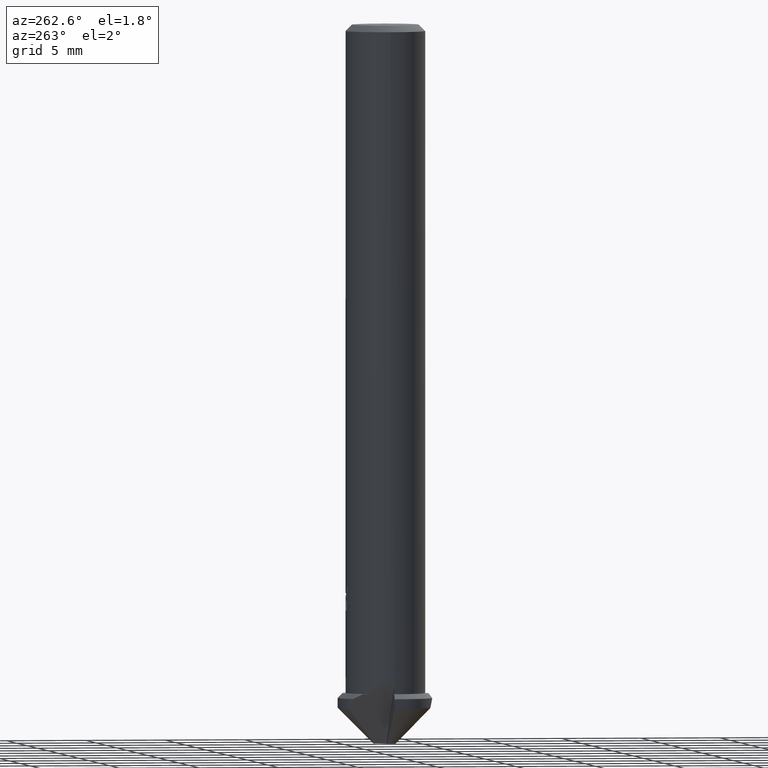
[diagram: clean part render]
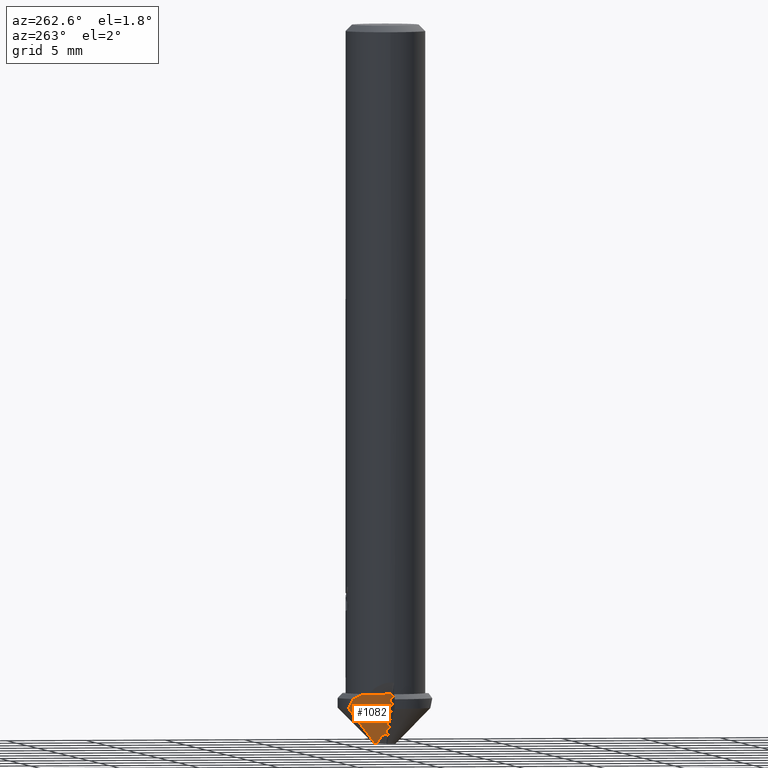
[diagram: same view with one face highlighted and labeled with its STEP entity id]
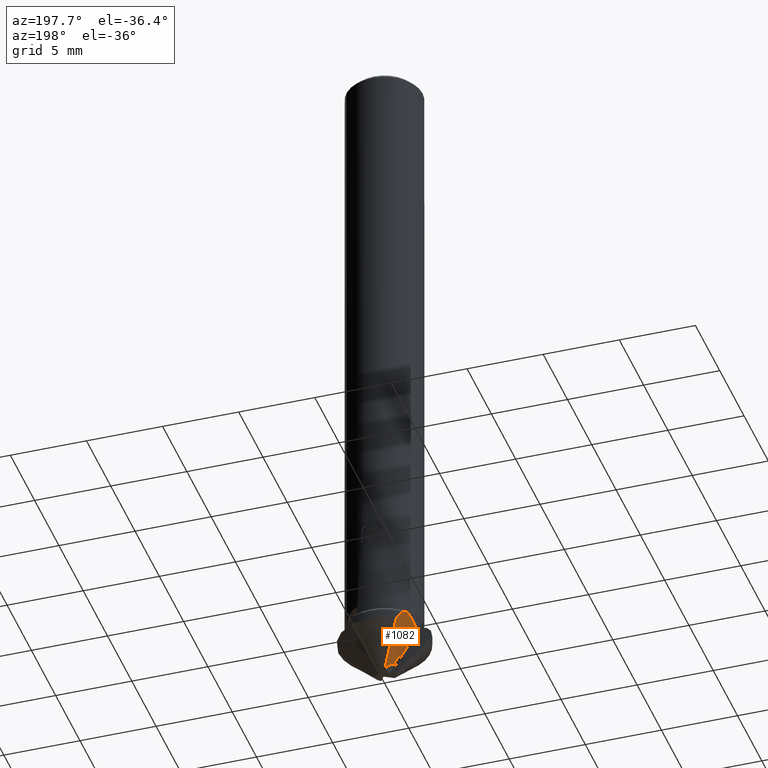
[diagram: same view with one face highlighted and labeled with its STEP entity id]
A machine part, auxiliary view. The second image highlights one B-rep face of the part: STEP entity #1082.
A second angle (auxiliary view) of the same face is appended — the face is thin or edge-on in the first view.
In plain terms, the highlighted planar face has unit normal (0.8661, 0.0127, 0.4997).
Its self-contained STEP definition (entity closure, byte-faithful):
#466=VERTEX_POINT('',#1332);
#652=VERTEX_POINT('',#1537);
#664=VERTEX_POINT('',#1549);
#672=EDGE_CURVE('',#1176,#1246,#1559,.T.);
#706=VERTEX_POINT('',#1600);
#772=EDGE_CURVE('',#706,#1228,#1673,.T.);
#792=EDGE_CURVE('',#466,#1176,#1693,.T.);
#852=EDGE_CURVE('',#1246,#918,#1759,.T.);
#856=EDGE_CURVE('',#664,#466,#1763,.T.);
#904=VERTEX_POINT('',#1814);
#918=VERTEX_POINT('',#1828);
#952=EDGE_CURVE('',#652,#664,#1865,.T.);
#990=EDGE_CURVE('',#706,#904,#1906,.T.);
#1082=ADVANCED_FACE('',(#2006),#2007,.F.);
#1098=EDGE_CURVE('',#904,#652,#2024,.T.);
#1176=VERTEX_POINT('',#2109);
#1228=VERTEX_POINT('',#2166);
#1246=VERTEX_POINT('',#2185);
#1270=EDGE_CURVE('',#918,#1228,#2209,.T.);
#1332=CARTESIAN_POINT('',(-1.59124968913594,2.54321143966143,-42.75));
#1537=CARTESIAN_POINT('',(-0.265975676265559,0.695903685602454,-45.0));
#1549=CARTESIAN_POINT('',(-0.266053891210158,0.701224163140385,-45.0));
#1559=(B_SPLINE_CURVE(2,(#2835,#2836,#2837),.UNSPECIFIED.,.F.,.F.)B_SPLINE_CURVE_WITH_KNOTS((3,3),(0.0,0.66067462479535),.UNSPECIFIED.)RATIONAL_B_SPLINE_CURVE((1.0,1.00169448352182,1.0))BOUNDED_CURVE()REPRESENTATION_ITEM('')GEOMETRIC_REPRESENTATION_ITEM()CURVE());
#1600=CARTESIAN_POINT('',(-0.599088917852454,0.0330525113474856,-44.4057318701355));
#1673=LINE('',#3067,#3068);
#1693=ELLIPSE('',#3123,6.00367922884375,3.0);
#1759=(B_SPLINE_CURVE(2,(#3278,#3279,#3280),.UNSPECIFIED.,.F.,.F.)B_SPLINE_CURVE_WITH_KNOTS((3,3),(0.0,0.02519336248384),.UNSPECIFIED.)RATIONAL_B_SPLINE_CURVE((1.0,1.00000275105687,1.0))BOUNDED_CURVE()REPRESENTATION_ITEM('')GEOMETRIC_REPRESENTATION_ITEM()CURVE());
#1763=(B_SPLINE_CURVE(2,(#3292,#3293,#3294),.UNSPECIFIED.,.F.,.F.)B_SPLINE_CURVE_WITH_KNOTS((3,3),(0.0,3.19557728387752),.UNSPECIFIED.)RATIONAL_B_SPLINE_CURVE((1.0,1.20879147207731,1.0))BOUNDED_CURVE()REPRESENTATION_ITEM('')GEOMETRIC_REPRESENTATION_ITEM()CURVE());
#1814=CARTESIAN_POINT('',(-0.269396162552323,0.536120982243823,-44.99));
#1828=CARTESIAN_POINT('',(-2.09809214095343,1.69941441916604,-41.85));
#1865=LINE('',#3502,#3503);
#1906=ELLIPSE('',#3565,1.20073584576875,0.6);
#2006=FACE_OUTER_BOUND('',#3710,.T.);
#2007=PLANE('',#3711);
#2024=(B_SPLINE_CURVE(2,(#3761,#3762,#3763),.UNSPECIFIED.,.F.,.F.)B_SPLINE_CURVE_WITH_KNOTS((3,3),(0.0,2.05390842824059),.UNSPECIFIED.)RATIONAL_B_SPLINE_CURVE((1.0,3.72611473754675,1.0))BOUNDED_CURVE()REPRESENTATION_ITEM('')GEOMETRIC_REPRESENTATION_ITEM()CURVE());
#2109=CARTESIAN_POINT('',(-1.93374490560221,2.29360647018129,-42.15));
#2166=CARTESIAN_POINT('',(-2.07152668645923,-0.107668672765562,-41.85));
#2185=CARTESIAN_POINT('',(-2.09265312890179,1.72188933503217,-41.86));
#2209=LINE('',#4164,#4165);
#2835=CARTESIAN_POINT('',(-1.93374490560221,2.29360647018129,-42.15));
#2836=CARTESIAN_POINT('',(-2.02478509936949,2.00069059871419,-41.9847382576289));
#2837=CARTESIAN_POINT('',(-2.09265312890179,1.72188933503217,-41.86));
#3067=CARTESIAN_POINT('',(-0.19012995949681,0.0721368041443879,-45.1155679431642));
#3068=VECTOR('',#4648,1.0);
#3123=AXIS2_PLACEMENT_3D('',#4656,#4657,#4658);
#3278=CARTESIAN_POINT('',(-2.09265312890179,1.72188933503217,-41.86));
#3279=CARTESIAN_POINT('',(-2.09539103863294,1.71064202612764,-41.8549678502269));
#3280=CARTESIAN_POINT('',(-2.09809214095344,1.69941441916604,-41.85));
#3292=CARTESIAN_POINT('',(-0.266053891210158,0.701224163140385,-45.0));
#3293=CARTESIAN_POINT('',(-0.551858646575252,1.11144353671853,-44.5150730610233));
#3294=CARTESIAN_POINT('',(-1.59124968913594,2.54321143966143,-42.75));
#3502=CARTESIAN_POINT('',(-0.3438939686795,5.99620181542247,-45.0));
#3503=VECTOR('',#4826,1.0);
#3565=AXIS2_PLACEMENT_3D('',#4866,#4867,#4868);
#3710=EDGE_LOOP('',(#4991,#4992,#4993,#4994,#4995,#4996,#4997,#4998,#4999));
#3711=AXIS2_PLACEMENT_3D('',#5000,#5001,#5002);
#3761=CARTESIAN_POINT('',(-0.228346524448143,-1.02854648158087,-45.0212820071702));
#3762=CARTESIAN_POINT('',(-0.282727546025806,-0.00415630348805187,-44.9531264574469));
#3763=CARTESIAN_POINT('',(-0.258482099120121,1.02138974169237,-45.0212820071702));
#4164=CARTESIAN_POINT('',(-2.16096291587916,5.97612326936604,-41.85));
#4165=VECTOR('',#5240,1.0);
#4648=DIRECTION('',(-0.498640616330882,-0.0476551875216675,0.865497844507676));
#4656=CARTESIAN_POINT('',(0.0,0.0,-45.4432782267687));
#4657=DIRECTION('',(0.866108656975691,0.0127324361655803,0.499693585491204));
#4658=DIRECTION('',(-0.49963959942913,-0.00734507068401933,0.866202240021893));
#4826=DIRECTION('',(-0.0146991494333453,0.999891961666827,0.0));
#4866=CARTESIAN_POINT('',(0.0,0.0,-45.4432782267687));
#4867=DIRECTION('',(-0.866108656975691,-0.0127324361655803,-0.499693585491204));
#4868=DIRECTION('',(-0.499639599429131,-0.00734507068401934,0.866202240021893));
#4991=ORIENTED_EDGE('',*,*,#990,.F.);
#4992=ORIENTED_EDGE('',*,*,#772,.T.);
#4993=ORIENTED_EDGE('',*,*,#1270,.F.);
#4994=ORIENTED_EDGE('',*,*,#852,.F.);
#4995=ORIENTED_EDGE('',*,*,#672,.F.);
#4996=ORIENTED_EDGE('',*,*,#792,.F.);
#4997=ORIENTED_EDGE('',*,*,#856,.F.);
#4998=ORIENTED_EDGE('',*,*,#952,.F.);
#4999=ORIENTED_EDGE('',*,*,#1098,.F.);
#5000=CARTESIAN_POINT('',(-0.605512280632602,11.9826243422784,-44.6990793028196));
#5001=DIRECTION('',(0.86610865697569,0.0127324361655803,0.499693585491204));
#5002=DIRECTION('',(-0.034832887576599,0.99878269316782,0.0349256606453176));
#5240=DIRECTION('',(0.0146991494333453,-0.999891961666827,0.0));